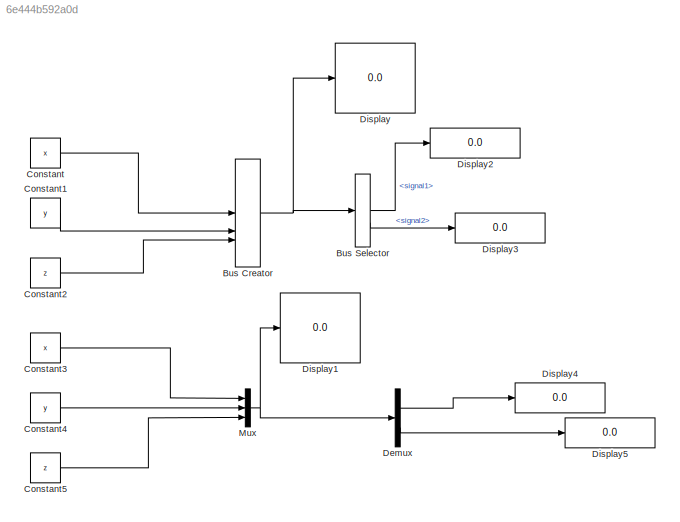
MODEL slx_6e444b592a0d
KIND model
CONFIG AbsTol = auto
CONFIG EnableMultiTasking = off
CONFIG FixedStep = auto
CONFIG InitFcn = x=23;\ny=45;\nz=90;
CONFIG MaxStep = auto
CONFIG MinStep = auto
CONFIG RelTol = 1e-3
CONFIG SampleTimeConstraint = Unconstrained
CONFIG SolverName = VariableStepAuto
CONFIG StartTime = 0.0
CONFIG StopTime = 10.0
WORKSPACE source: mxarray member
WORKSPACE x = 4
WORKSPACE y = 5
WORKSPACE z = 6
BLOCK [BusCreator] Bus Creator
  DisplayOption = bar
  InheritFromInputs = on
  Inputs = 3
BLOCK [BusSelector] Bus Selector
  OutputSignals = signal1,signal2
BLOCK [Constant] Constant
  Value = x
BLOCK [Constant] Constant1
  Value = y
BLOCK [Constant] Constant2
  Value = z
BLOCK [Constant] Constant3
  Value = x
BLOCK [Constant] Constant4
  Value = y
BLOCK [Constant] Constant5
  Value = z
BLOCK [Demux] Demux
  Outputs = 2
BLOCK [Display] Display
  Decimation = 1
BLOCK [Display] Display1
  Decimation = 1
BLOCK [Display] Display2
  Decimation = 1
BLOCK [Display] Display3
  Decimation = 1
BLOCK [Display] Display4
  Decimation = 1
BLOCK [Display] Display5
  Decimation = 1
BLOCK [Mux] Mux
  DisplayOption = bar
  Inputs = 3
NET Bus Creator:1 -> Bus Selector:1, Display:1
LINE Bus Selector:1 -> Display2:1
LINE Bus Selector:2 -> Display3:1
LINE Constant1:1 -> Bus Creator:2
LINE Constant2:1 -> Bus Creator:3
LINE Constant3:1 -> Mux:1
LINE Constant4:1 -> Mux:2
LINE Constant5:1 -> Mux:3
LINE Constant:1 -> Bus Creator:1
LINE Demux:1 -> Display4:1
LINE Demux:2 -> Display5:1
NET Mux:1 -> Demux:1, Display1:1
note: NET lines group one-source signal fan-out (src -> all destinations, sorted); 1:1 wires keep LINE
